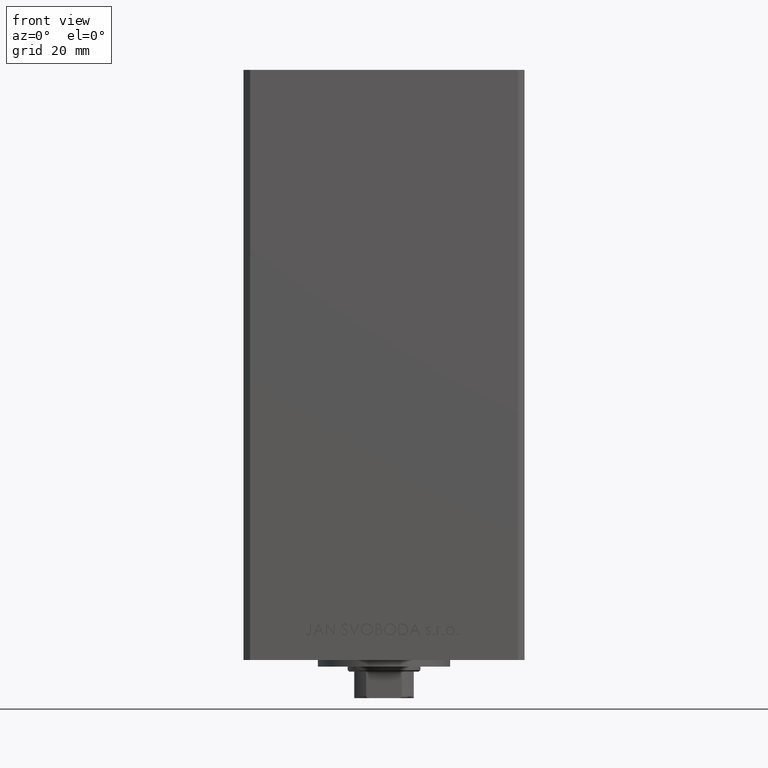
[diagram: clean part render]
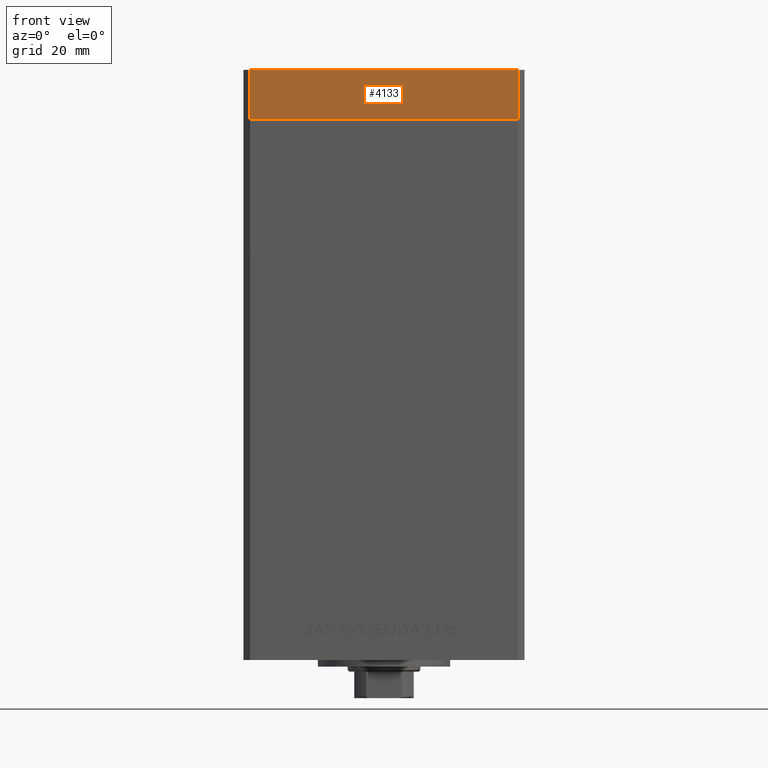
[diagram: same view with one face highlighted and labeled with its STEP entity id]
A machine part, front view. The second image highlights one B-rep face of the part: STEP entity #4133.
In plain terms, the highlighted planar face has unit normal (0, -1, 0).
Its self-contained STEP definition (entity closure, byte-faithful):
#410 = DIRECTION ( 'NONE',  ( 1.000000000000000000, 1.713307136767217096E-16, 0.000000000000000000 ) ) ;
#902 = FACE_OUTER_BOUND ( 'NONE', #27335, .T. ) ;
#3033 = EDGE_CURVE ( 'NONE', #30387, #40398, #26157, .T. ) ;
#4133 = ADVANCED_FACE ( 'NONE', ( #902 ), #30373, .T. ) ;
#4870 = CARTESIAN_POINT ( 'NONE',  ( 40.50000000000000000, -37.50000000000000711, -15.00000000000000000 ) ) ;
#6504 = VECTOR ( 'NONE', #410, 1000.000000000000000 ) ;
#6682 = VECTOR ( 'NONE', #30876, 1000.000000000000000 ) ;
#8165 = EDGE_CURVE ( 'NONE', #33706, #30387, #27397, .T. ) ;
#8762 = ORIENTED_EDGE ( 'NONE', *, *, #8165, .F. ) ;
#14471 = EDGE_CURVE ( 'NONE', #17606, #40398, #23923, .T. ) ;
#14804 = CARTESIAN_POINT ( 'NONE',  ( -40.49999999999999289, -37.50000000000002132, -15.00000000000000000 ) ) ;
#17606 = VERTEX_POINT ( 'NONE', #47997 ) ;
#18104 = VECTOR ( 'NONE', #29918, 1000.000000000000000 ) ;
#19701 = DIRECTION ( 'NONE',  ( 1.713307136767217096E-16, -1.000000000000000000, 0.000000000000000000 ) ) ;
#20096 = CARTESIAN_POINT ( 'NONE',  ( -40.49999999999999289, -37.50000000000002132, 0.000000000000000000 ) ) ;
#22328 = ORIENTED_EDGE ( 'NONE', *, *, #3033, .F. ) ;
#22578 = ORIENTED_EDGE ( 'NONE', *, *, #14471, .T. ) ;
#23445 = CARTESIAN_POINT ( 'NONE',  ( -40.49999999999999289, -37.50000000000002132, -15.00000000000000000 ) ) ;
#23923 = LINE ( 'NONE', #4870, #40728 ) ;
#24430 = CARTESIAN_POINT ( 'NONE',  ( -40.49999999999999289, -37.50000000000002132, -15.00000000000000000 ) ) ;
#26157 = LINE ( 'NONE', #34550, #6504 ) ;
#26411 = DIRECTION ( 'NONE',  ( 1.000000000000000000, 1.713307136767217096E-16, 0.000000000000000000 ) ) ;
#27335 = EDGE_LOOP ( 'NONE', ( #22328, #8762, #33824, #22578 ) ) ;
#27397 = LINE ( 'NONE', #23445, #6682 ) ;
#29834 = EDGE_CURVE ( 'NONE', #33706, #17606, #30162, .T. ) ;
#29918 = DIRECTION ( 'NONE',  ( 1.000000000000000000, 1.713307136767217096E-16, 0.000000000000000000 ) ) ;
#30162 = LINE ( 'NONE', #14804, #18104 ) ;
#30373 = PLANE ( 'NONE',  #45243 ) ;
#30387 = VERTEX_POINT ( 'NONE', #20096 ) ;
#30876 = DIRECTION ( 'NONE',  ( 0.000000000000000000, 0.000000000000000000, 1.000000000000000000 ) ) ;
#33706 = VERTEX_POINT ( 'NONE', #24430 ) ;
#33822 = CARTESIAN_POINT ( 'NONE',  ( -40.49999999999999289, -37.50000000000002132, -15.00000000000000000 ) ) ;
#33824 = ORIENTED_EDGE ( 'NONE', *, *, #29834, .T. ) ;
#34550 = CARTESIAN_POINT ( 'NONE',  ( -40.49999999999999289, -37.50000000000002132, 0.000000000000000000 ) ) ;
#39495 = DIRECTION ( 'NONE',  ( 0.000000000000000000, 0.000000000000000000, 1.000000000000000000 ) ) ;
#40398 = VERTEX_POINT ( 'NONE', #48645 ) ;
#40728 = VECTOR ( 'NONE', #39495, 1000.000000000000000 ) ;
#45243 = AXIS2_PLACEMENT_3D ( 'NONE', #33822, #19701, #26411 ) ;
#47997 = CARTESIAN_POINT ( 'NONE',  ( 40.50000000000000000, -37.50000000000000711, -15.00000000000000000 ) ) ;
#48645 = CARTESIAN_POINT ( 'NONE',  ( 40.50000000000000000, -37.50000000000000711, 0.000000000000000000 ) ) ;